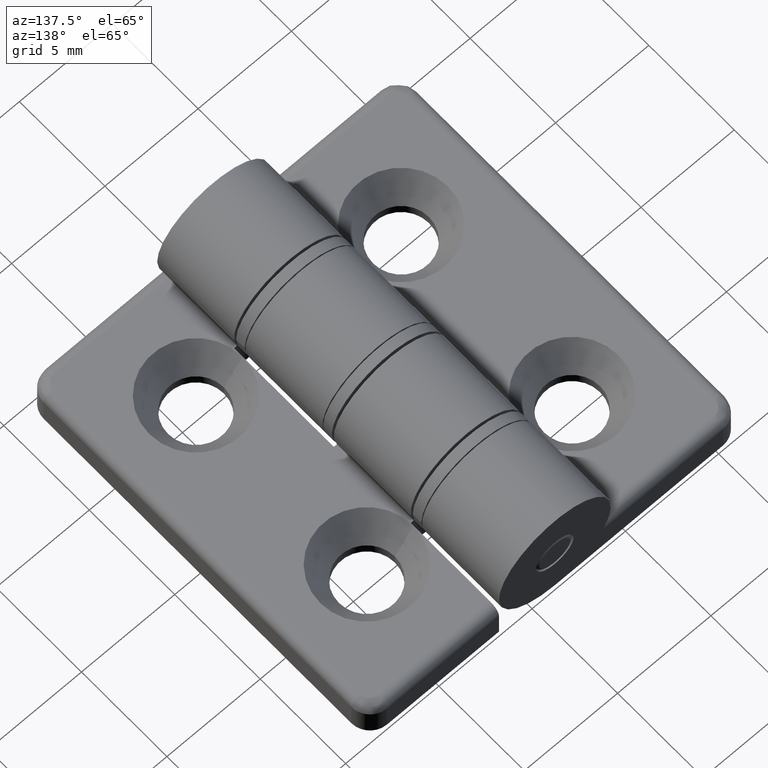
[diagram: clean part render]
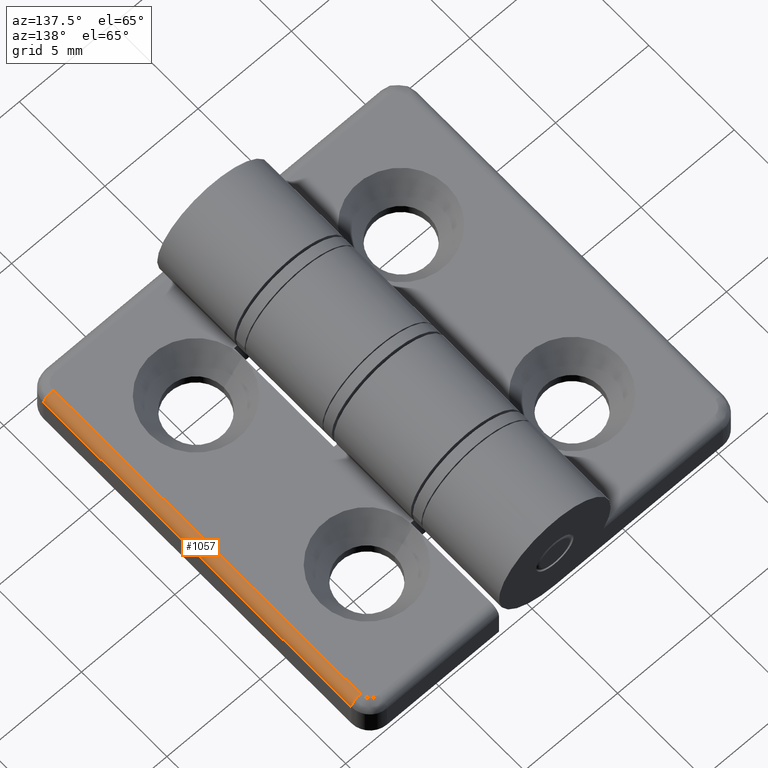
[diagram: same view with one face highlighted and labeled with its STEP entity id]
A machine part, auxiliary view. The second image highlights one B-rep face of the part: STEP entity #1057.
In plain terms, the highlighted cylindrical surface (edge-blend (fillet) strip) has radius 0.5 mm, axis along (-0, -1, -0).
Its self-contained STEP definition (entity closure, byte-faithful):
#159=FACE_OUTER_BOUND('',#253,.T.);
#253=EDGE_LOOP('',(#874,#875,#876,#877));
#323=LINE('',#1781,#389);
#324=LINE('',#1782,#390);
#389=VECTOR('',#1437,18.);
#390=VECTOR('',#1438,18.);
#463=CIRCLE('',#1172,0.499999999999999);
#466=CIRCLE('',#1176,0.5);
#546=VERTEX_POINT('',#1772);
#547=VERTEX_POINT('',#1773);
#548=VERTEX_POINT('',#1778);
#549=VERTEX_POINT('',#1779);
#661=EDGE_CURVE('',#546,#547,#463,.T.);
#664=EDGE_CURVE('',#548,#549,#466,.T.);
#665=EDGE_CURVE('',#549,#547,#323,.T.);
#666=EDGE_CURVE('',#546,#548,#324,.T.);
#874=ORIENTED_EDGE('',*,*,#664,.T.);
#875=ORIENTED_EDGE('',*,*,#665,.T.);
#876=ORIENTED_EDGE('',*,*,#661,.F.);
#877=ORIENTED_EDGE('',*,*,#666,.T.);
#1003=CYLINDRICAL_SURFACE('',#1175,0.5);
#1057=ADVANCED_FACE('',(#159),#1003,.T.);
#1172=AXIS2_PLACEMENT_3D('',#1774,#1427,#1428);
#1175=AXIS2_PLACEMENT_3D('',#1777,#1433,#1434);
#1176=AXIS2_PLACEMENT_3D('',#1780,#1435,#1436);
#1427=DIRECTION('center_axis',(0.,0.,1.));
#1428=DIRECTION('ref_axis',(0.,1.,0.));
#1433=DIRECTION('center_axis',(0.,0.,-1.));
#1434=DIRECTION('ref_axis',(-0.707106781186548,0.707106781186547,0.));
#1435=DIRECTION('center_axis',(0.,0.,1.));
#1436=DIRECTION('ref_axis',(0.,1.,0.));
#1437=DIRECTION('',(0.,0.,1.));
#1438=DIRECTION('',(0.,0.,-1.));
#1772=CARTESIAN_POINT('',(-9.5,2.,9.));
#1773=CARTESIAN_POINT('',(-10.,1.5,9.));
#1774=CARTESIAN_POINT('Origin',(-9.5,1.5,9.));
#1777=CARTESIAN_POINT('Origin',(-9.5,1.5,0.));
#1778=CARTESIAN_POINT('',(-9.5,2.,-9.));
#1779=CARTESIAN_POINT('',(-10.,1.5,-9.));
#1780=CARTESIAN_POINT('Origin',(-9.5,1.5,-9.));
#1781=CARTESIAN_POINT('',(-10.,1.5,0.));
#1782=CARTESIAN_POINT('',(-9.5,2.,0.));